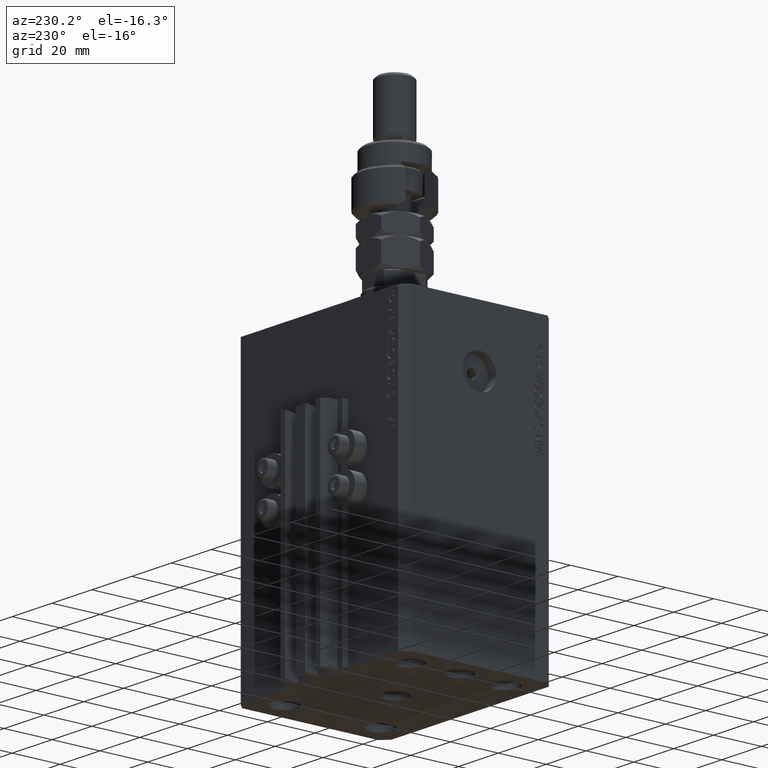
[diagram: clean part render]
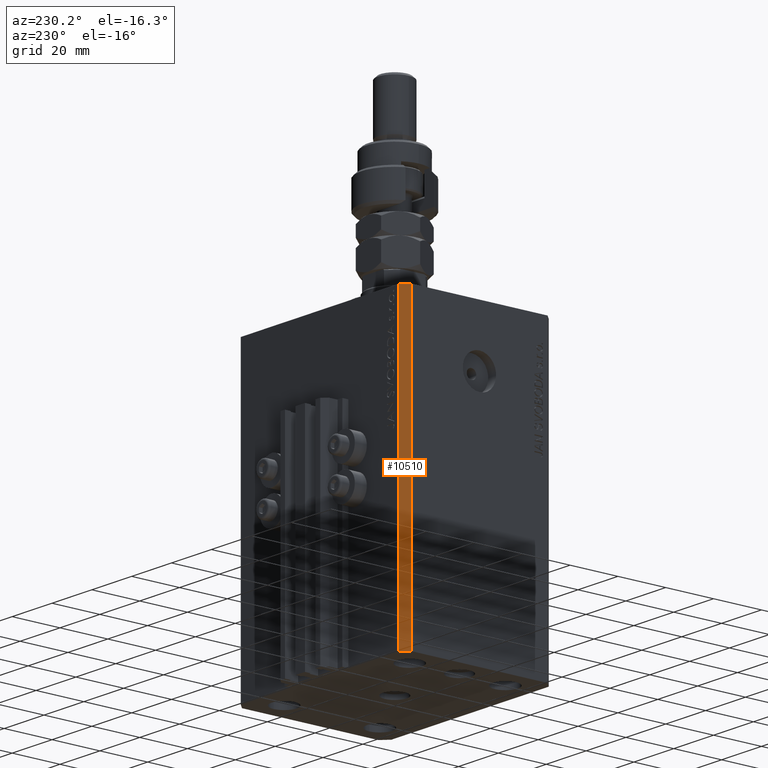
[diagram: same view with one face highlighted and labeled with its STEP entity id]
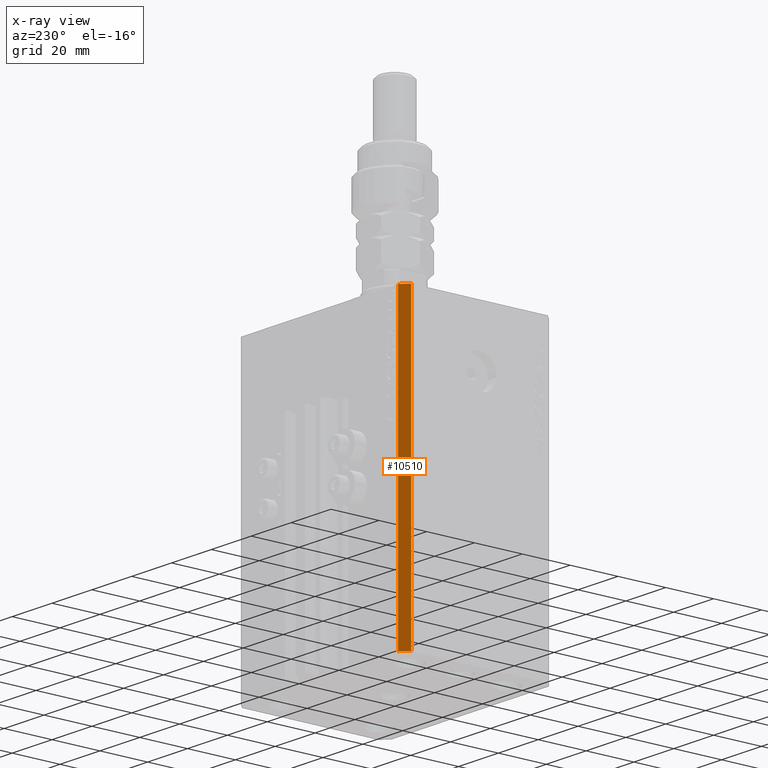
[diagram: x-ray of the same camera — body ghosted, the highlighted face saturated]
A machine part, auxiliary view. The second image highlights one B-rep face of the part: STEP entity #10510.
The next image is the same camera in x-ray: the body ghosted, the highlighted face saturated — about 0% of this face is hidden behind the body in this view.
In plain terms, the highlighted planar face has unit normal (-0.7071, 0.7071, 0).
Its self-contained STEP definition (entity closure, byte-faithful):
#685 = CARTESIAN_POINT ( 'NONE',  ( -39.50000000000000711, 31.50000000000000000, 0.000000000000000000 ) ) ;
#1631 = ORIENTED_EDGE ( 'NONE', *, *, #22464, .T. ) ;
#3363 = VECTOR ( 'NONE', #16165, 1000.000000000000000 ) ;
#3583 = EDGE_CURVE ( 'NONE', #35736, #33279, #9958, .T. ) ;
#5634 = CARTESIAN_POINT ( 'NONE',  ( -39.50000000000000711, 31.50000000000000000, -123.0000000000000000 ) ) ;
#6151 = LINE ( 'NONE', #13778, #8499 ) ;
#7774 = PLANE ( 'NONE',  #48660 ) ;
#8499 = VECTOR ( 'NONE', #24691, 1000.000000000000000 ) ;
#8628 = EDGE_CURVE ( 'NONE', #33279, #13220, #15913, .T. ) ;
#8751 = ORIENTED_EDGE ( 'NONE', *, *, #35529, .T. ) ;
#9443 = DIRECTION ( 'NONE',  ( 0.000000000000000000, 0.000000000000000000, 1.000000000000000000 ) ) ;
#9958 = LINE ( 'NONE', #5634, #15274 ) ;
#10510 = ADVANCED_FACE ( 'NONE', ( #26321 ), #7774, .T. ) ;
#13220 = VERTEX_POINT ( 'NONE', #31234 ) ;
#13778 = CARTESIAN_POINT ( 'NONE',  ( -39.50000000000000711, 31.50000000000000000, -123.0000000000000000 ) ) ;
#15176 = EDGE_LOOP ( 'NONE', ( #27796, #21748, #8751, #1631 ) ) ;
#15274 = VECTOR ( 'NONE', #9443, 1000.000000000000000 ) ;
#15640 = DIRECTION ( 'NONE',  ( -0.7071067811865479058, 0.7071067811865472397, 0.000000000000000000 ) ) ;
#15913 = LINE ( 'NONE', #685, #3363 ) ;
#16165 = DIRECTION ( 'NONE',  ( -0.7071067811865471286, -0.7071067811865479058, 0.000000000000000000 ) ) ;
#17498 = LINE ( 'NONE', #33225, #49127 ) ;
#21748 = ORIENTED_EDGE ( 'NONE', *, *, #3583, .F. ) ;
#22464 = EDGE_CURVE ( 'NONE', #46573, #13220, #17498, .T. ) ;
#24691 = DIRECTION ( 'NONE',  ( -0.7071067811865471286, -0.7071067811865479058, 0.000000000000000000 ) ) ;
#26321 = FACE_OUTER_BOUND ( 'NONE', #15176, .T. ) ;
#26569 = CARTESIAN_POINT ( 'NONE',  ( -39.50000000000000711, 31.50000000000000000, -123.0000000000000000 ) ) ;
#27796 = ORIENTED_EDGE ( 'NONE', *, *, #8628, .F. ) ;
#29664 = DIRECTION ( 'NONE',  ( 0.000000000000000000, 0.000000000000000000, 1.000000000000000000 ) ) ;
#31050 = CARTESIAN_POINT ( 'NONE',  ( -42.50000000000000000, 28.50000000000000000, -123.0000000000000000 ) ) ;
#31234 = CARTESIAN_POINT ( 'NONE',  ( -42.50000000000000000, 28.50000000000000000, 0.000000000000000000 ) ) ;
#33225 = CARTESIAN_POINT ( 'NONE',  ( -42.50000000000000000, 28.50000000000000000, -123.0000000000000000 ) ) ;
#33279 = VERTEX_POINT ( 'NONE', #44066 ) ;
#35529 = EDGE_CURVE ( 'NONE', #35736, #46573, #6151, .T. ) ;
#35736 = VERTEX_POINT ( 'NONE', #47199 ) ;
#41780 = DIRECTION ( 'NONE',  ( -0.7071067811865472397, -0.7071067811865479058, 0.000000000000000000 ) ) ;
#44066 = CARTESIAN_POINT ( 'NONE',  ( -39.50000000000000711, 31.50000000000000000, 0.000000000000000000 ) ) ;
#46573 = VERTEX_POINT ( 'NONE', #31050 ) ;
#47199 = CARTESIAN_POINT ( 'NONE',  ( -39.50000000000000711, 31.50000000000000000, -123.0000000000000000 ) ) ;
#48660 = AXIS2_PLACEMENT_3D ( 'NONE', #26569, #15640, #41780 ) ;
#49127 = VECTOR ( 'NONE', #29664, 1000.000000000000000 ) ;